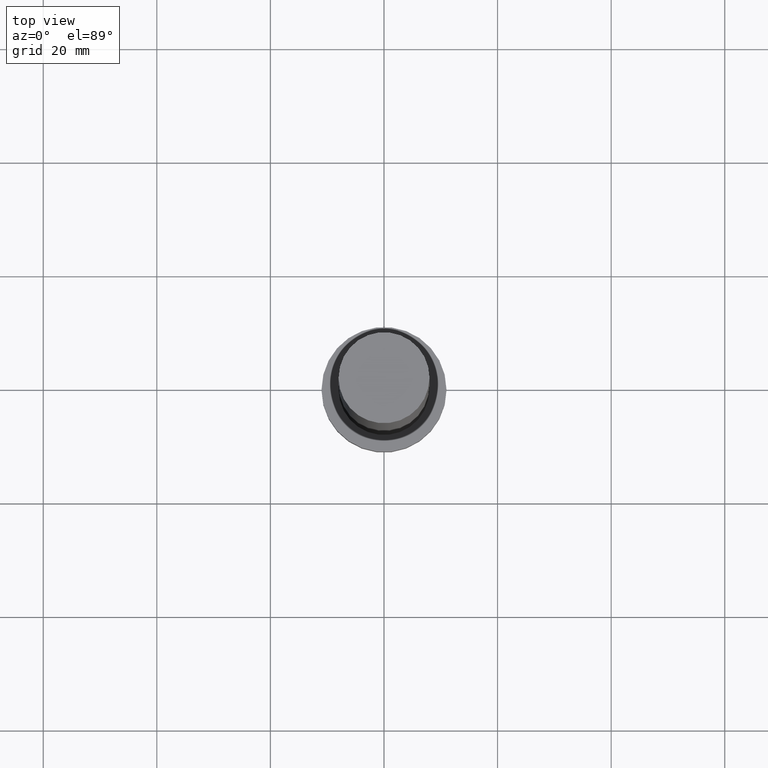
[diagram: clean part render]
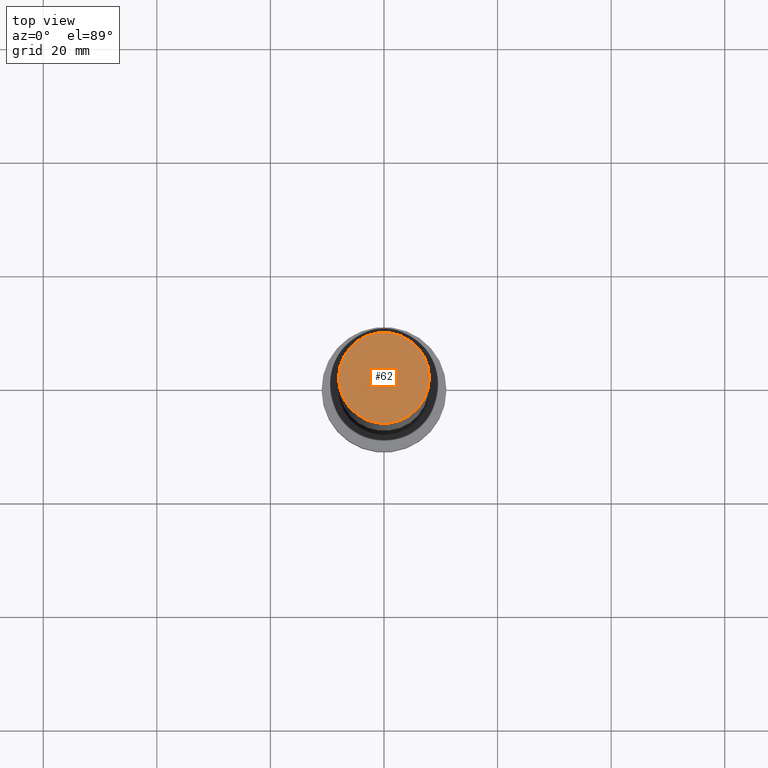
[diagram: same view with one face highlighted and labeled with its STEP entity id]
A machine part, top view. The second image highlights one B-rep face of the part: STEP entity #62.
In plain terms, the highlighted planar face has unit normal (0, 0, 1).
Its self-contained STEP definition (entity closure, byte-faithful):
#12 = DIRECTION ( 'NONE',  ( 1.000000000000000000, 0.000000000000000000, 0.000000000000000000 ) ) ;
#28 = CARTESIAN_POINT ( 'NONE',  ( 0.000000000000000000, 0.000000000000000000, 125.0000000000000000 ) ) ;
#39 = CIRCLE ( 'NONE', #55, 8.000000000000000000 ) ;
#55 = AXIS2_PLACEMENT_3D ( 'NONE', #28, #119, #12 ) ;
#62 = ADVANCED_FACE ( 'NONE', ( #194 ), #75, .T. ) ;
#65 = DIRECTION ( 'NONE',  ( 1.000000000000000000, 0.000000000000000000, 0.000000000000000000 ) ) ;
#75 = PLANE ( 'NONE',  #252 ) ;
#115 = CARTESIAN_POINT ( 'NONE',  ( -8.000000000000000000, 0.000000000000000000, 125.0000000000000000 ) ) ;
#119 = DIRECTION ( 'NONE',  ( 0.000000000000000000, 0.000000000000000000, 1.000000000000000000 ) ) ;
#122 = AXIS2_PLACEMENT_3D ( 'NONE', #224, #169, #65 ) ;
#126 = ORIENTED_EDGE ( 'NONE', *, *, #161, .T. ) ;
#141 = EDGE_LOOP ( 'NONE', ( #126, #143 ) ) ;
#143 = ORIENTED_EDGE ( 'NONE', *, *, #195, .T. ) ;
#145 = CARTESIAN_POINT ( 'NONE',  ( 8.000000000000000000, 9.797174393178825657E-16, 125.0000000000000000 ) ) ;
#149 = CIRCLE ( 'NONE', #122, 8.000000000000000000 ) ;
#150 = VERTEX_POINT ( 'NONE', #145 ) ;
#161 = EDGE_CURVE ( 'NONE', #244, #150, #39, .T. ) ;
#167 = DIRECTION ( 'NONE',  ( 1.000000000000000000, 0.000000000000000000, -0.000000000000000000 ) ) ;
#169 = DIRECTION ( 'NONE',  ( 0.000000000000000000, 0.000000000000000000, 1.000000000000000000 ) ) ;
#193 = CARTESIAN_POINT ( 'NONE',  ( 0.000000000000000000, 0.000000000000000000, 125.0000000000000000 ) ) ;
#194 = FACE_OUTER_BOUND ( 'NONE', #141, .T. ) ;
#195 = EDGE_CURVE ( 'NONE', #150, #244, #149, .T. ) ;
#196 = DIRECTION ( 'NONE',  ( 0.000000000000000000, 0.000000000000000000, 1.000000000000000000 ) ) ;
#224 = CARTESIAN_POINT ( 'NONE',  ( 0.000000000000000000, 0.000000000000000000, 125.0000000000000000 ) ) ;
#244 = VERTEX_POINT ( 'NONE', #115 ) ;
#252 = AXIS2_PLACEMENT_3D ( 'NONE', #193, #196, #167 ) ;